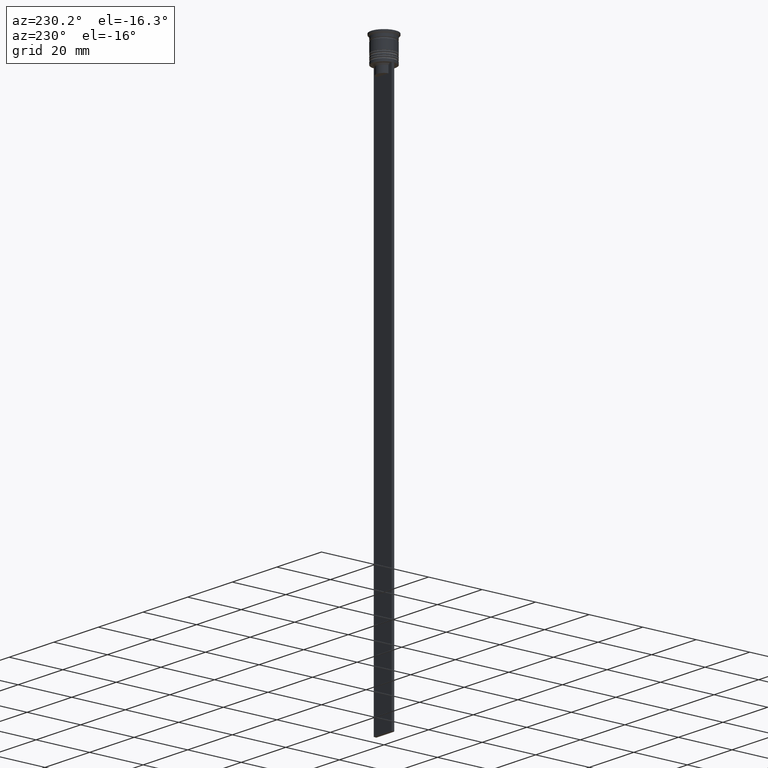
[diagram: clean part render]
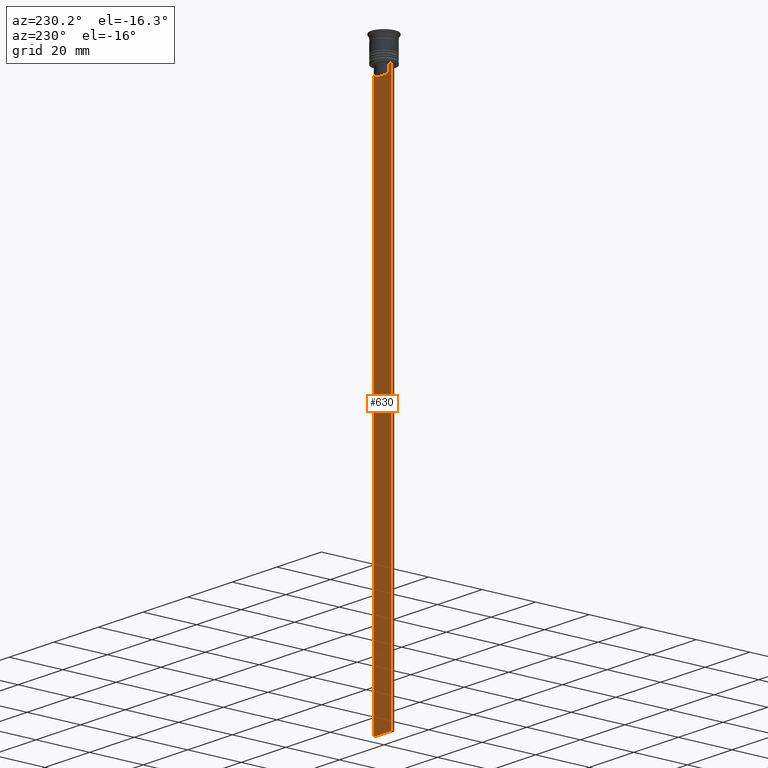
[diagram: same view with one face highlighted and labeled with its STEP entity id]
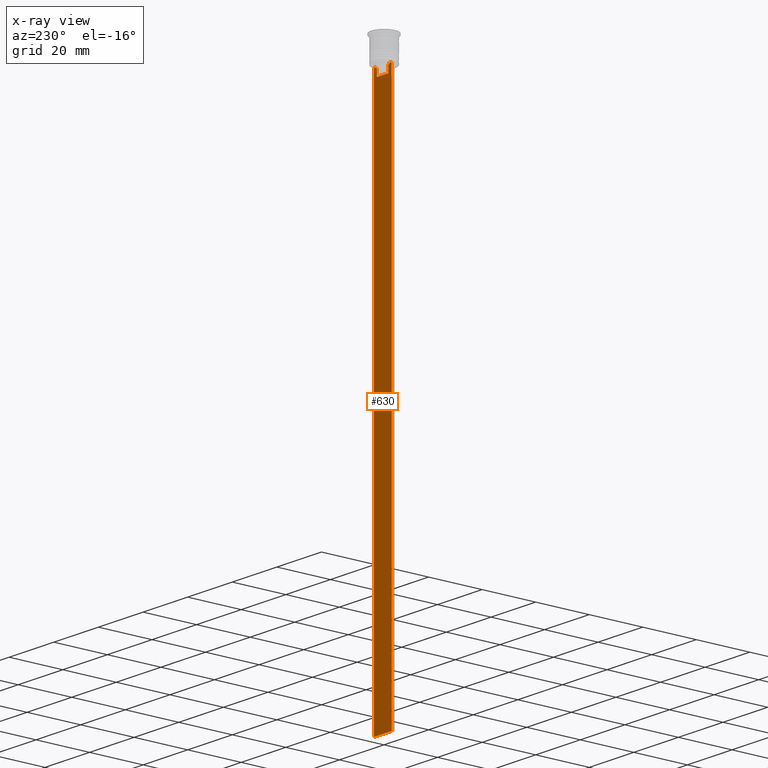
[diagram: x-ray of the same camera — body ghosted, the highlighted face saturated]
A machine part, auxiliary view. The second image highlights one B-rep face of the part: STEP entity #630.
The next image is the same camera in x-ray: the body ghosted, the highlighted face saturated — about 0% of this face is hidden behind the body in this view.
In plain terms, the highlighted planar face has unit normal (0, -1, -0).
Its self-contained STEP definition (entity closure, byte-faithful):
#6 = CARTESIAN_POINT ( 'NONE',  ( 2.941045828809989438, 0.4999999999999995559, -9.666875663357577864 ) ) ;
#20 = CARTESIAN_POINT ( 'NONE',  ( -2.602402735934617350, 0.4999999999999995559, -10.00000000000000178 ) ) ;
#28 = EDGE_CURVE ( 'NONE', #1995, #2308, #536, .T. ) ;
#35 = CARTESIAN_POINT ( 'NONE',  ( -3.110064308016796897, 0.4999999999999995559, -9.500000000000000000 ) ) ;
#59 = EDGE_CURVE ( 'NONE', #1277, #1807, #1113, .T. ) ;
#73 = EDGE_LOOP ( 'NONE', ( #1300, #1675, #215, #1578, #1444, #193, #168, #1224, #354, #1738 ) ) ;
#102 = CARTESIAN_POINT ( 'NONE',  ( -2.602402735934617350, 0.4999999999999995559, -12.50000000000000000 ) ) ;
#121 = CARTESIAN_POINT ( 'NONE',  ( 4.000000000000005329, 0.4999999999999995559, -1.437742251701450202 ) ) ;
#161 = CARTESIAN_POINT ( 'NONE',  ( 2.602402735934617350, 0.4999999999999995559, -10.00000000000000178 ) ) ;
#168 = ORIENTED_EDGE ( 'NONE', *, *, #1527, .T. ) ;
#170 = EDGE_CURVE ( 'NONE', #739, #1191, #2005, .T. ) ;
#193 = ORIENTED_EDGE ( 'NONE', *, *, #1588, .T. ) ;
#210 = CARTESIAN_POINT ( 'NONE',  ( -2.602402735934617350, 0.4999999999999995559, -10.00000000000000178 ) ) ;
#215 = ORIENTED_EDGE ( 'NONE', *, *, #2134, .T. ) ;
#261 = VECTOR ( 'NONE', #1592, 1000.000000000000000 ) ;
#271 = B_SPLINE_CURVE_WITH_KNOTS ( 'NONE', 3,
 ( #1253, #2176, #6, #1999 ),
 .UNSPECIFIED., .F., .F.,
 ( 4, 4 ),
 ( 0.01295151922336847637, 0.01367164596165162602 ),
 .UNSPECIFIED. ) ;
#287 = CARTESIAN_POINT ( 'NONE',  ( 4.000000000000005329, 0.4999999999999995559, -209.5000000000000284 ) ) ;
#322 = VECTOR ( 'NONE', #351, 1000.000000000000000 ) ;
#342 = CARTESIAN_POINT ( 'NONE',  ( 4.000000000000005329, 0.4999999999999995559, -9.500000000000000000 ) ) ;
#351 = DIRECTION ( 'NONE',  ( 1.000000000000000000, 0.000000000000000000, 0.000000000000000000 ) ) ;
#354 = ORIENTED_EDGE ( 'NONE', *, *, #624, .T. ) ;
#371 = CARTESIAN_POINT ( 'NONE',  ( -2.602402735934617350, 0.4999999999999995559, 0.000000000000000000 ) ) ;
#434 = CARTESIAN_POINT ( 'NONE',  ( 0.000000000000000000, 0.4999999999999995559, -12.50000000000000000 ) ) ;
#536 = LINE ( 'NONE', #1476, #1027 ) ;
#555 = LINE ( 'NONE', #1814, #322 ) ;
#624 = EDGE_CURVE ( 'NONE', #2277, #1807, #1002, .T. ) ;
#630 = ADVANCED_FACE ( 'NONE', ( #816 ), #1555, .F. ) ;
#705 = EDGE_CURVE ( 'NONE', #2337, #2277, #901, .T. ) ;
#739 = VERTEX_POINT ( 'NONE', #1627 ) ;
#816 = FACE_OUTER_BOUND ( 'NONE', #73, .T. ) ;
#858 = EDGE_CURVE ( 'NONE', #1277, #739, #2219, .T. ) ;
#901 = LINE ( 'NONE', #1616, #261 ) ;
#1002 = LINE ( 'NONE', #287, #1801 ) ;
#1027 = VECTOR ( 'NONE', #2215, 1000.000000000000000 ) ;
#1080 = VERTEX_POINT ( 'NONE', #1369 ) ;
#1113 = LINE ( 'NONE', #1851, #1799 ) ;
#1150 = CARTESIAN_POINT ( 'NONE',  ( -2.941047749529105193, 0.4999999999999995559, -9.666873766989334982 ) ) ;
#1191 = VERTEX_POINT ( 'NONE', #20 ) ;
#1224 = ORIENTED_EDGE ( 'NONE', *, *, #705, .T. ) ;
#1253 = CARTESIAN_POINT ( 'NONE',  ( 2.602402735934617350, 0.4999999999999995559, -10.00000000000000178 ) ) ;
#1277 = VERTEX_POINT ( 'NONE', #2083 ) ;
#1283 = DIRECTION ( 'NONE',  ( 1.000000000000000000, 0.000000000000000000, 0.000000000000000000 ) ) ;
#1300 = ORIENTED_EDGE ( 'NONE', *, *, #858, .T. ) ;
#1313 = CARTESIAN_POINT ( 'NONE',  ( 4.000000000000005329, 0.4999999999999995559, -9.500000000000000000 ) ) ;
#1341 = LINE ( 'NONE', #434, #2139 ) ;
#1369 = CARTESIAN_POINT ( 'NONE',  ( 3.110064308016796897, 0.4999999999999995559, -9.500000000000000000 ) ) ;
#1375 = VECTOR ( 'NONE', #1283, 1000.000000000000000 ) ;
#1394 = DIRECTION ( 'NONE',  ( -1.000000000000000000, 0.000000000000000000, 0.000000000000000000 ) ) ;
#1444 = ORIENTED_EDGE ( 'NONE', *, *, #28, .T. ) ;
#1460 = CARTESIAN_POINT ( 'NONE',  ( 2.602402735934617350, 0.4999999999999995559, -12.50000000000000000 ) ) ;
#1465 = VERTEX_POINT ( 'NONE', #102 ) ;
#1476 = CARTESIAN_POINT ( 'NONE',  ( 2.602402735934617350, 0.4999999999999995559, 0.000000000000000000 ) ) ;
#1527 = EDGE_CURVE ( 'NONE', #1080, #2337, #555, .T. ) ;
#1555 = PLANE ( 'NONE',  #1917 ) ;
#1578 = ORIENTED_EDGE ( 'NONE', *, *, #1653, .T. ) ;
#1588 = EDGE_CURVE ( 'NONE', #2308, #1080, #271, .T. ) ;
#1592 = DIRECTION ( 'NONE',  ( 0.000000000000000000, 0.000000000000000000, -1.000000000000000000 ) ) ;
#1616 = CARTESIAN_POINT ( 'NONE',  ( 4.000000000000005329, 0.4999999999999995559, -1.437742251701450202 ) ) ;
#1627 = CARTESIAN_POINT ( 'NONE',  ( -3.110064308016796897, 0.4999999999999995559, -9.500000000000000000 ) ) ;
#1644 = CARTESIAN_POINT ( 'NONE',  ( 4.000000000000005329, 0.4999999999999995559, -209.5000000000000284 ) ) ;
#1653 = EDGE_CURVE ( 'NONE', #1465, #1995, #1341, .T. ) ;
#1675 = ORIENTED_EDGE ( 'NONE', *, *, #170, .T. ) ;
#1700 = LINE ( 'NONE', #371, #2144 ) ;
#1738 = ORIENTED_EDGE ( 'NONE', *, *, #59, .F. ) ;
#1799 = VECTOR ( 'NONE', #1989, 1000.000000000000000 ) ;
#1801 = VECTOR ( 'NONE', #1394, 1000.000000000000000 ) ;
#1807 = VERTEX_POINT ( 'NONE', #1925 ) ;
#1814 = CARTESIAN_POINT ( 'NONE',  ( 4.000000000000005329, 0.4999999999999995559, -9.500000000000000000 ) ) ;
#1846 = DIRECTION ( 'NONE',  ( 0.000000000000000000, 0.000000000000000000, -1.000000000000000000 ) ) ;
#1851 = CARTESIAN_POINT ( 'NONE',  ( -3.999999999999994671, 0.4999999999999995559, -1.437742251701450202 ) ) ;
#1917 = AXIS2_PLACEMENT_3D ( 'NONE', #121, #2136, #2293 ) ;
#1925 = CARTESIAN_POINT ( 'NONE',  ( -3.999999999999994671, 0.4999999999999995559, -209.5000000000000284 ) ) ;
#1989 = DIRECTION ( 'NONE',  ( 0.000000000000000000, 0.000000000000000000, -1.000000000000000000 ) ) ;
#1995 = VERTEX_POINT ( 'NONE', #1460 ) ;
#1999 = CARTESIAN_POINT ( 'NONE',  ( 3.110064308016796897, 0.4999999999999995559, -9.500000000000000000 ) ) ;
#2005 = B_SPLINE_CURVE_WITH_KNOTS ( 'NONE', 3,
 ( #35, #1150, #2240, #210 ),
 .UNSPECIFIED., .F., .F.,
 ( 4, 4 ),
 ( 0.005378271293598279809, 0.006090816219555997280 ),
 .UNSPECIFIED. ) ;
#2083 = CARTESIAN_POINT ( 'NONE',  ( -3.999999999999994671, 0.4999999999999997780, -9.500000000000000000 ) ) ;
#2134 = EDGE_CURVE ( 'NONE', #1191, #1465, #1700, .T. ) ;
#2136 = DIRECTION ( 'NONE',  ( 0.000000000000000000, -1.000000000000000000, -0.000000000000000000 ) ) ;
#2139 = VECTOR ( 'NONE', #2247, 1000.000000000000000 ) ;
#2144 = VECTOR ( 'NONE', #1846, 1000.000000000000000 ) ;
#2176 = CARTESIAN_POINT ( 'NONE',  ( 2.771864055700302476, 0.4999999999999995559, -9.833582414266677674 ) ) ;
#2215 = DIRECTION ( 'NONE',  ( -0.000000000000000000, -0.000000000000000000, 1.000000000000000000 ) ) ;
#2219 = LINE ( 'NONE', #1313, #1375 ) ;
#2240 = CARTESIAN_POINT ( 'NONE',  ( -2.771866350855961780, 0.4999999999999995559, -9.833580160334840059 ) ) ;
#2247 = DIRECTION ( 'NONE',  ( 1.000000000000000000, 0.000000000000000000, 0.000000000000000000 ) ) ;
#2277 = VERTEX_POINT ( 'NONE', #1644 ) ;
#2293 = DIRECTION ( 'NONE',  ( 0.000000000000000000, 0.000000000000000000, -1.000000000000000000 ) ) ;
#2308 = VERTEX_POINT ( 'NONE', #161 ) ;
#2337 = VERTEX_POINT ( 'NONE', #342 ) ;